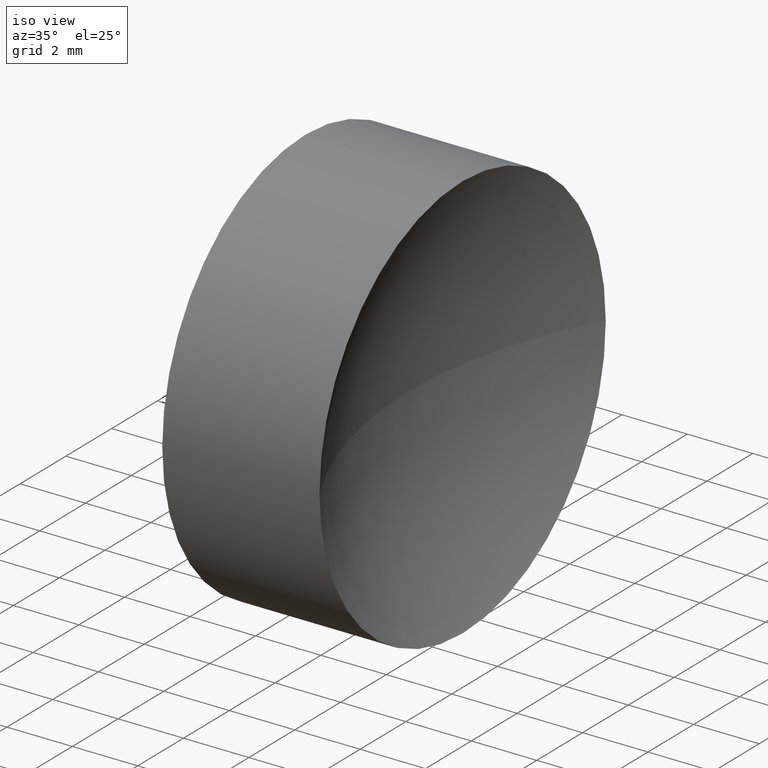
[diagram: clean part render]
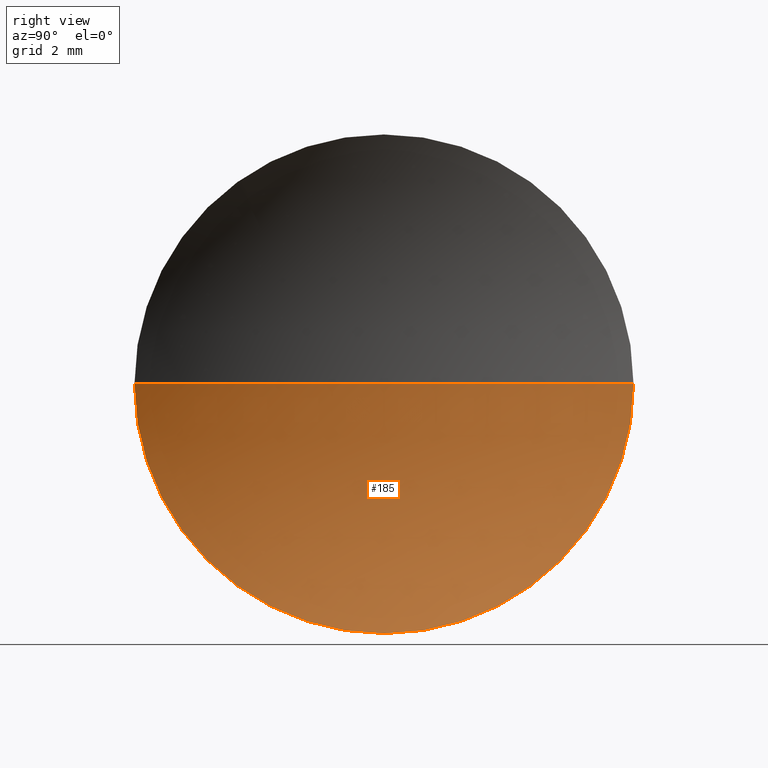
[diagram: tour spotlight — one face highlighted and labeled with its STEP entity id]
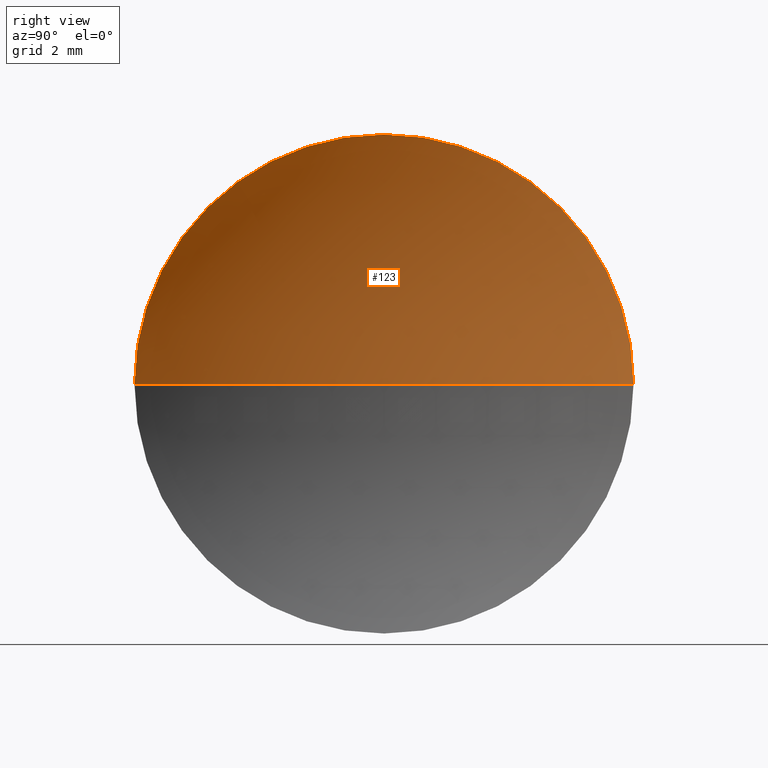
[diagram: tour spotlight — one face highlighted and labeled with its STEP entity id]
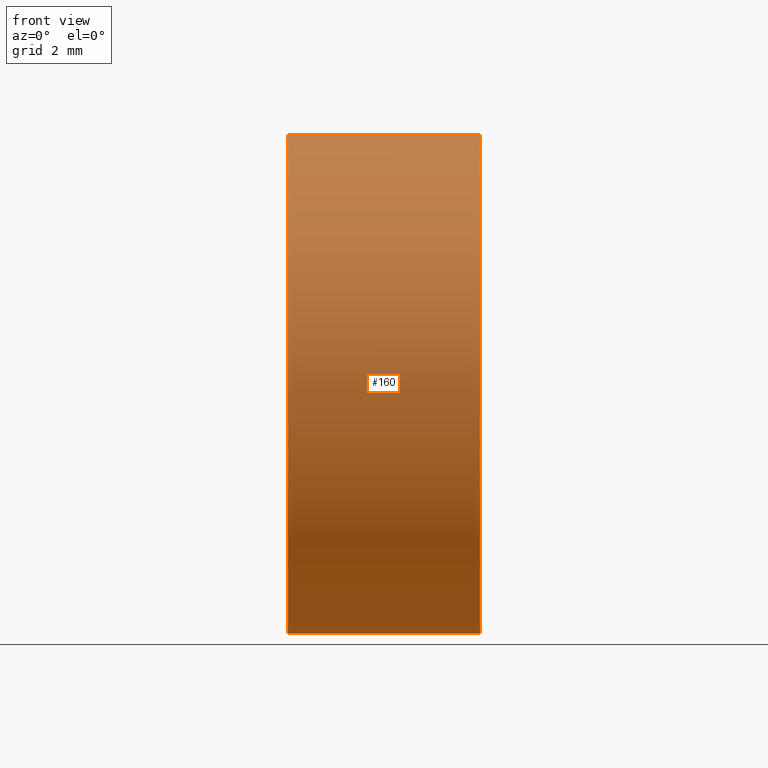
[diagram: tour spotlight — one face highlighted and labeled with its STEP entity id]
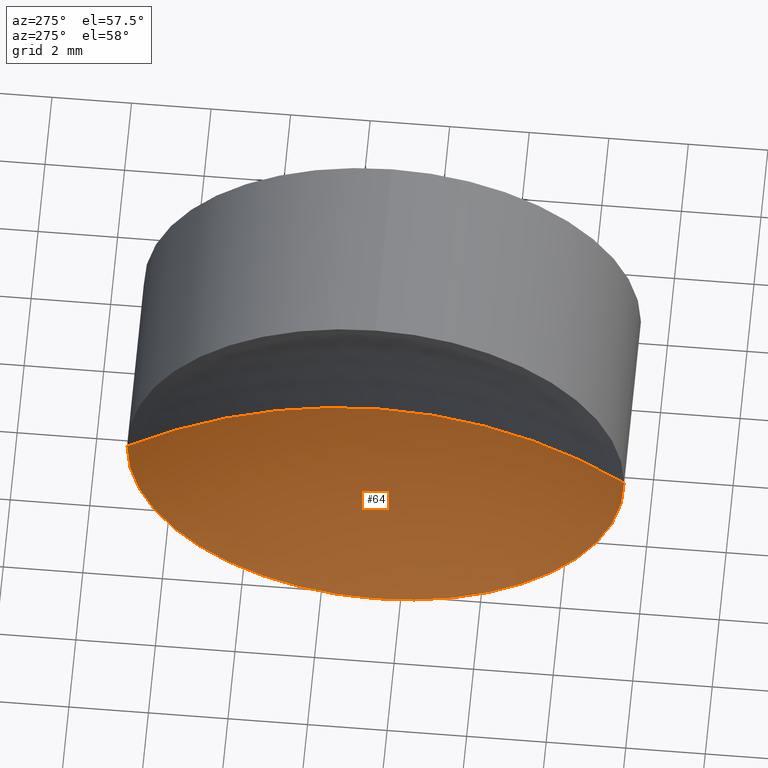
[diagram: tour spotlight — one face highlighted and labeled with its STEP entity id]
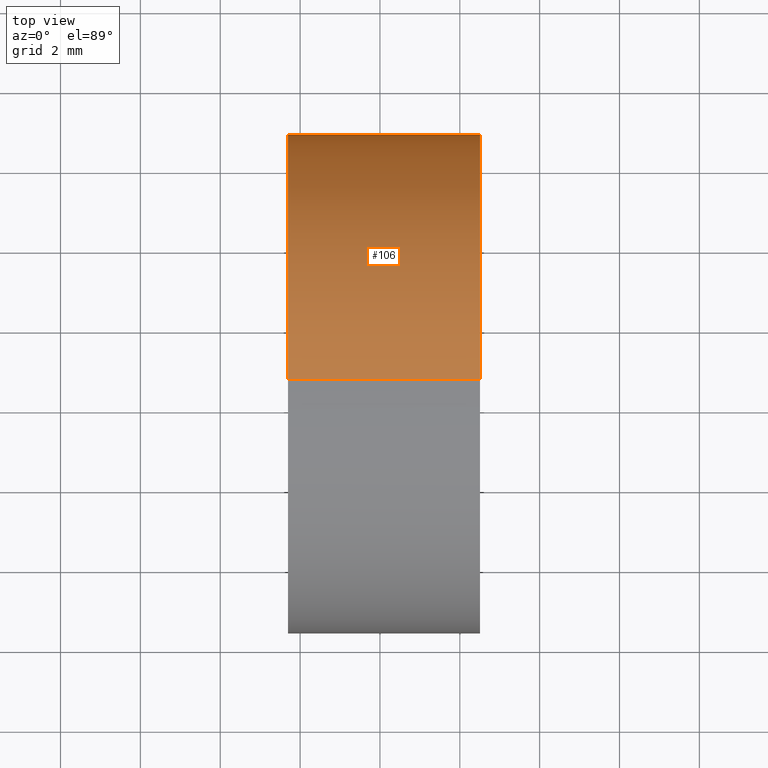
[diagram: tour spotlight — one face highlighted and labeled with its STEP entity id]
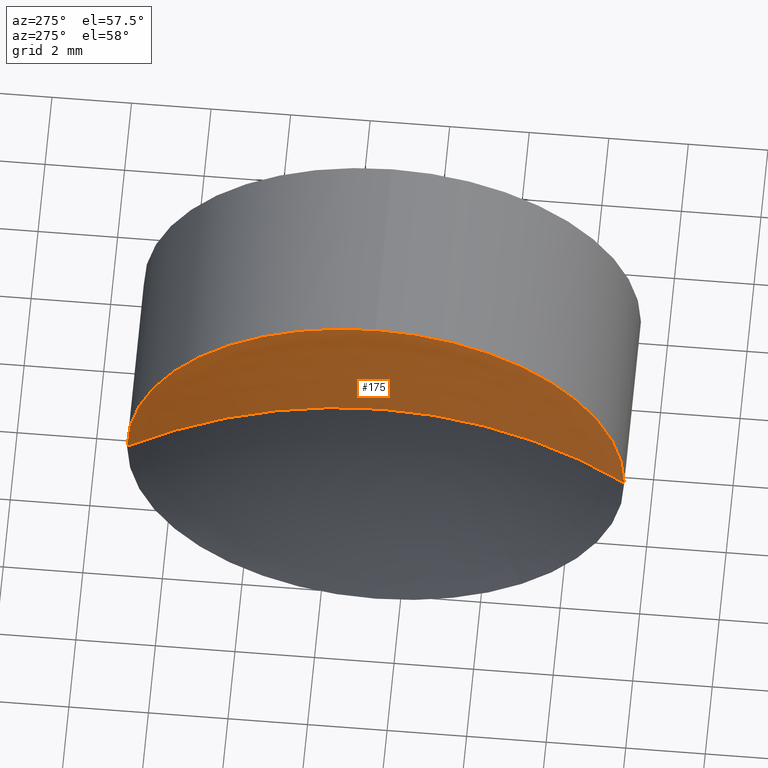
[diagram: tour spotlight — one face highlighted and labeled with its STEP entity id]
A machine part: a face-by-face anatomy tour. The part has 6 B-rep faces; the first image is the clean iso view, then the 6 largest visible faces are spotlighted one at a time (largest first), each with its STEP entity span.

Face 1 — right view, entity #185. In plain terms, the highlighted spherical surface has radius 12.64 mm.
Definition (entity closure, byte-faithful):
#12 = VERTEX_POINT ( 'NONE', #142 ) ;
#16 = CARTESIAN_POINT ( 'NONE',  ( 62.50492152106526300, 32.61130143649369700, 0.0000000000000000000 ) ) ;
#18 = VERTEX_POINT ( 'NONE', #89 ) ;
#19 = EDGE_CURVE ( 'NONE', #71, #190, #214, .T. ) ;
#22 = EDGE_CURVE ( 'NONE', #12, #18, #50, .T. ) ;
#23 = CARTESIAN_POINT ( 'NONE',  ( 73.49159981798467800, 32.61130143649369700, 0.0000000000000000000 ) ) ;
#27 = CARTESIAN_POINT ( 'NONE',  ( 73.49159981798467800, 32.61130143649369700, 0.0000000000000000000 ) ) ;
#28 = ORIENTED_EDGE ( 'NONE', *, *, #191, .F. ) ;
#29 = CARTESIAN_POINT ( 'NONE',  ( 73.49159981798467800, 32.61130143649369700, 0.0000000000000000000 ) ) ;
#34 = AXIS2_PLACEMENT_3D ( 'NONE', #27, #224, #201 ) ;
#43 = AXIS2_PLACEMENT_3D ( 'NONE', #16, #84, #121 ) ;
#50 = CIRCLE ( 'NONE', #155, 6.249999999999998200 ) ;
#51 = SPHERICAL_SURFACE ( 'NONE', #87, 12.64000000000000600 ) ;
#54 = CARTESIAN_POINT ( 'NONE',  ( 62.50492152106526300, 26.36130143649369700, 0.0000000000000000000 ) ) ;
#57 = FACE_OUTER_BOUND ( 'NONE', #100, .T. ) ;
#65 = CIRCLE ( 'NONE', #34, 12.64000000000000600 ) ;
#69 = EDGE_CURVE ( 'NONE', #12, #190, #65, .T. ) ;
#71 = VERTEX_POINT ( 'NONE', #54 ) ;
#75 = DIRECTION ( 'NONE',  ( -1.000000000000000000, -0.0000000000000000000, -0.0000000000000000000 ) ) ;
#79 = DIRECTION ( 'NONE',  ( 0.0000000000000000000, -1.000000000000000000, 0.0000000000000000000 ) ) ;
#84 = DIRECTION ( 'NONE',  ( -1.000000000000000000, -0.0000000000000000000, -0.0000000000000000000 ) ) ;
#87 = AXIS2_PLACEMENT_3D ( 'NONE', #29, #229, #79 ) ;
#89 = CARTESIAN_POINT ( 'NONE',  ( 62.50492152106526300, 32.61130143649369700, -6.249999999999998200 ) ) ;
#93 = AXIS2_PLACEMENT_3D ( 'NONE', #23, #193, #110 ) ;
#94 = ORIENTED_EDGE ( 'NONE', *, *, #19, .F. ) ;
#100 = EDGE_LOOP ( 'NONE', ( #140, #102, #94, #28 ) ) ;
#102 = ORIENTED_EDGE ( 'NONE', *, *, #69, .T. ) ;
#110 = DIRECTION ( 'NONE',  ( -1.000000000000000000, 0.0000000000000000000, 0.0000000000000000000 ) ) ;
#111 = DIRECTION ( 'NONE',  ( 0.0000000000000000000, 0.0000000000000000000, 1.000000000000000000 ) ) ;
#115 = CARTESIAN_POINT ( 'NONE',  ( 62.50492152106526300, 32.61130143649369700, 0.0000000000000000000 ) ) ;
#118 = CARTESIAN_POINT ( 'NONE',  ( 60.85159981798467800, 32.61130143649369700, 0.0000000000000000000 ) ) ;
#121 = DIRECTION ( 'NONE',  ( 0.0000000000000000000, 0.0000000000000000000, 1.000000000000000000 ) ) ;
#140 = ORIENTED_EDGE ( 'NONE', *, *, #22, .F. ) ;
#142 = CARTESIAN_POINT ( 'NONE',  ( 62.50492152106526300, 38.86130143649369000, 7.654042494670953700E-016 ) ) ;
#151 = CIRCLE ( 'NONE', #43, 6.249999999999998200 ) ;
#155 = AXIS2_PLACEMENT_3D ( 'NONE', #115, #75, #111 ) ;
#185 = ADVANCED_FACE ( 'NONE', ( #57 ), #51, .F. ) ;
#190 = VERTEX_POINT ( 'NONE', #118 ) ;
#191 = EDGE_CURVE ( 'NONE', #18, #71, #151, .T. ) ;
#193 = DIRECTION ( 'NONE',  ( 0.0000000000000000000, 0.0000000000000000000, -1.000000000000000000 ) ) ;
#201 = DIRECTION ( 'NONE',  ( 0.0000000000000000000, -1.000000000000000000, -1.224646799147353200E-016 ) ) ;
#214 = CIRCLE ( 'NONE', #93, 12.64000000000000600 ) ;
#224 = DIRECTION ( 'NONE',  ( 0.0000000000000000000, -1.224646799147353200E-016, 1.000000000000000000 ) ) ;
#229 = DIRECTION ( 'NONE',  ( 0.0000000000000000000, 0.0000000000000000000, 1.000000000000000000 ) ) ;

Face 2 — right view, entity #123. In plain terms, the highlighted spherical surface has radius 12.64 mm.
Definition (entity closure, byte-faithful):
#6 = AXIS2_PLACEMENT_3D ( 'NONE', #164, #74, #166 ) ;
#12 = VERTEX_POINT ( 'NONE', #142 ) ;
#19 = EDGE_CURVE ( 'NONE', #71, #190, #214, .T. ) ;
#23 = CARTESIAN_POINT ( 'NONE',  ( 73.49159981798467800, 32.61130143649369700, 0.0000000000000000000 ) ) ;
#27 = CARTESIAN_POINT ( 'NONE',  ( 73.49159981798467800, 32.61130143649369700, 0.0000000000000000000 ) ) ;
#33 = EDGE_LOOP ( 'NONE', ( #148, #68, #156, #61 ) ) ;
#34 = AXIS2_PLACEMENT_3D ( 'NONE', #27, #224, #201 ) ;
#40 = DIRECTION ( 'NONE',  ( 0.0000000000000000000, 0.0000000000000000000, 1.000000000000000000 ) ) ;
#41 = CARTESIAN_POINT ( 'NONE',  ( 62.50492152106526300, 32.61130143649369700, 0.0000000000000000000 ) ) ;
#45 = DIRECTION ( 'NONE',  ( 0.0000000000000000000, 0.0000000000000000000, 1.000000000000000000 ) ) ;
#52 = EDGE_CURVE ( 'NONE', #98, #12, #180, .T. ) ;
#53 = FACE_OUTER_BOUND ( 'NONE', #33, .T. ) ;
#54 = CARTESIAN_POINT ( 'NONE',  ( 62.50492152106526300, 26.36130143649369700, 0.0000000000000000000 ) ) ;
#58 = CARTESIAN_POINT ( 'NONE',  ( 62.50492152106526300, 32.61130143649369700, 0.0000000000000000000 ) ) ;
#61 = ORIENTED_EDGE ( 'NONE', *, *, #19, .T. ) ;
#65 = CIRCLE ( 'NONE', #34, 12.64000000000000600 ) ;
#68 = ORIENTED_EDGE ( 'NONE', *, *, #52, .F. ) ;
#69 = EDGE_CURVE ( 'NONE', #12, #190, #65, .T. ) ;
#71 = VERTEX_POINT ( 'NONE', #54 ) ;
#74 = DIRECTION ( 'NONE',  ( 0.0000000000000000000, 0.0000000000000000000, 1.000000000000000000 ) ) ;
#86 = EDGE_CURVE ( 'NONE', #71, #98, #194, .T. ) ;
#93 = AXIS2_PLACEMENT_3D ( 'NONE', #23, #193, #110 ) ;
#95 = DIRECTION ( 'NONE',  ( -1.000000000000000000, -0.0000000000000000000, -0.0000000000000000000 ) ) ;
#98 = VERTEX_POINT ( 'NONE', #153 ) ;
#110 = DIRECTION ( 'NONE',  ( -1.000000000000000000, 0.0000000000000000000, 0.0000000000000000000 ) ) ;
#118 = CARTESIAN_POINT ( 'NONE',  ( 60.85159981798467800, 32.61130143649369700, 0.0000000000000000000 ) ) ;
#123 = ADVANCED_FACE ( 'NONE', ( #53 ), #137, .F. ) ;
#129 = DIRECTION ( 'NONE',  ( -1.000000000000000000, -0.0000000000000000000, -0.0000000000000000000 ) ) ;
#137 = SPHERICAL_SURFACE ( 'NONE', #6, 12.64000000000000600 ) ;
#142 = CARTESIAN_POINT ( 'NONE',  ( 62.50492152106526300, 38.86130143649369000, 7.654042494670953700E-016 ) ) ;
#148 = ORIENTED_EDGE ( 'NONE', *, *, #69, .F. ) ;
#153 = CARTESIAN_POINT ( 'NONE',  ( 62.50492152106526300, 32.61130143649369700, 6.249999999999998200 ) ) ;
#156 = ORIENTED_EDGE ( 'NONE', *, *, #86, .F. ) ;
#158 = AXIS2_PLACEMENT_3D ( 'NONE', #58, #129, #45 ) ;
#164 = CARTESIAN_POINT ( 'NONE',  ( 73.49159981798467800, 32.61130143649369700, 0.0000000000000000000 ) ) ;
#166 = DIRECTION ( 'NONE',  ( 0.0000000000000000000, -1.000000000000000000, 0.0000000000000000000 ) ) ;
#180 = CIRCLE ( 'NONE', #195, 6.249999999999998200 ) ;
#190 = VERTEX_POINT ( 'NONE', #118 ) ;
#193 = DIRECTION ( 'NONE',  ( 0.0000000000000000000, 0.0000000000000000000, -1.000000000000000000 ) ) ;
#194 = CIRCLE ( 'NONE', #158, 6.249999999999998200 ) ;
#195 = AXIS2_PLACEMENT_3D ( 'NONE', #41, #95, #40 ) ;
#201 = DIRECTION ( 'NONE',  ( 0.0000000000000000000, -1.000000000000000000, -1.224646799147353200E-016 ) ) ;
#214 = CIRCLE ( 'NONE', #93, 12.64000000000000600 ) ;
#224 = DIRECTION ( 'NONE',  ( 0.0000000000000000000, -1.224646799147353200E-016, 1.000000000000000000 ) ) ;

Face 3 — front view, entity #160. In plain terms, the highlighted cylindrical surface (partial cylindrical patch) has radius 6.25 mm, axis along (-1, -0, -0).
Definition (entity closure, byte-faithful):
#4 = ORIENTED_EDGE ( 'NONE', *, *, #191, .T. ) ;
#5 = CARTESIAN_POINT ( 'NONE',  ( 57.69827810624625600, 26.36130143649369400, -7.654042494670953700E-016 ) ) ;
#7 = DIRECTION ( 'NONE',  ( 0.0000000000000000000, 0.0000000000000000000, 1.000000000000000000 ) ) ;
#10 = CARTESIAN_POINT ( 'NONE',  ( 57.69827810624625600, 32.61130143649369700, 0.0000000000000000000 ) ) ;
#11 = CARTESIAN_POINT ( 'NONE',  ( 57.69827810624625600, 32.61130143649369700, -6.249999999999998200 ) ) ;
#16 = CARTESIAN_POINT ( 'NONE',  ( 62.50492152106526300, 32.61130143649369700, 0.0000000000000000000 ) ) ;
#17 = ORIENTED_EDGE ( 'NONE', *, *, #209, .F. ) ;
#18 = VERTEX_POINT ( 'NONE', #89 ) ;
#24 = CARTESIAN_POINT ( 'NONE',  ( 53.06232639267102500, 32.61130143649369700, -6.249999999999998200 ) ) ;
#31 = CARTESIAN_POINT ( 'NONE',  ( 57.69827810624625600, 32.61130143649369700, 6.249999999999998200 ) ) ;
#37 = CIRCLE ( 'NONE', #72, 6.249999999999998200 ) ;
#43 = AXIS2_PLACEMENT_3D ( 'NONE', #16, #84, #121 ) ;
#45 = DIRECTION ( 'NONE',  ( 0.0000000000000000000, 0.0000000000000000000, 1.000000000000000000 ) ) ;
#46 = VERTEX_POINT ( 'NONE', #5 ) ;
#49 = VERTEX_POINT ( 'NONE', #11 ) ;
#54 = CARTESIAN_POINT ( 'NONE',  ( 62.50492152106526300, 26.36130143649369700, 0.0000000000000000000 ) ) ;
#56 = EDGE_CURVE ( 'NONE', #46, #230, #90, .T. ) ;
#58 = CARTESIAN_POINT ( 'NONE',  ( 62.50492152106526300, 32.61130143649369700, 0.0000000000000000000 ) ) ;
#70 = CYLINDRICAL_SURFACE ( 'NONE', #109, 6.249999999999998200 ) ;
#71 = VERTEX_POINT ( 'NONE', #54 ) ;
#72 = AXIS2_PLACEMENT_3D ( 'NONE', #82, #81, #133 ) ;
#77 = DIRECTION ( 'NONE',  ( 0.0000000000000000000, 0.0000000000000000000, 1.000000000000000000 ) ) ;
#78 = ORIENTED_EDGE ( 'NONE', *, *, #86, .T. ) ;
#80 = EDGE_CURVE ( 'NONE', #18, #49, #217, .T. ) ;
#81 = DIRECTION ( 'NONE',  ( -1.000000000000000000, -0.0000000000000000000, -0.0000000000000000000 ) ) ;
#82 = CARTESIAN_POINT ( 'NONE',  ( 57.69827810624625600, 32.61130143649369700, 0.0000000000000000000 ) ) ;
#84 = DIRECTION ( 'NONE',  ( -1.000000000000000000, -0.0000000000000000000, -0.0000000000000000000 ) ) ;
#86 = EDGE_CURVE ( 'NONE', #71, #98, #194, .T. ) ;
#89 = CARTESIAN_POINT ( 'NONE',  ( 62.50492152106526300, 32.61130143649369700, -6.249999999999998200 ) ) ;
#90 = CIRCLE ( 'NONE', #213, 6.249999999999998200 ) ;
#97 = CARTESIAN_POINT ( 'NONE',  ( 53.06232639267102500, 32.61130143649369700, 0.0000000000000000000 ) ) ;
#98 = VERTEX_POINT ( 'NONE', #153 ) ;
#101 = EDGE_LOOP ( 'NONE', ( #127, #4, #78, #144, #116, #17 ) ) ;
#105 = VECTOR ( 'NONE', #157, 1000.000000000000000 ) ;
#109 = AXIS2_PLACEMENT_3D ( 'NONE', #97, #114, #7 ) ;
#112 = DIRECTION ( 'NONE',  ( -1.000000000000000000, -0.0000000000000000000, -0.0000000000000000000 ) ) ;
#114 = DIRECTION ( 'NONE',  ( -1.000000000000000000, -0.0000000000000000000, -0.0000000000000000000 ) ) ;
#116 = ORIENTED_EDGE ( 'NONE', *, *, #56, .F. ) ;
#120 = FACE_OUTER_BOUND ( 'NONE', #101, .T. ) ;
#121 = DIRECTION ( 'NONE',  ( 0.0000000000000000000, 0.0000000000000000000, 1.000000000000000000 ) ) ;
#127 = ORIENTED_EDGE ( 'NONE', *, *, #80, .F. ) ;
#129 = DIRECTION ( 'NONE',  ( -1.000000000000000000, -0.0000000000000000000, -0.0000000000000000000 ) ) ;
#133 = DIRECTION ( 'NONE',  ( 0.0000000000000000000, 0.0000000000000000000, 1.000000000000000000 ) ) ;
#144 = ORIENTED_EDGE ( 'NONE', *, *, #203, .T. ) ;
#150 = DIRECTION ( 'NONE',  ( -1.000000000000000000, -0.0000000000000000000, -0.0000000000000000000 ) ) ;
#151 = CIRCLE ( 'NONE', #43, 6.249999999999998200 ) ;
#153 = CARTESIAN_POINT ( 'NONE',  ( 62.50492152106526300, 32.61130143649369700, 6.249999999999998200 ) ) ;
#157 = DIRECTION ( 'NONE',  ( -1.000000000000000000, -0.0000000000000000000, -0.0000000000000000000 ) ) ;
#158 = AXIS2_PLACEMENT_3D ( 'NONE', #58, #129, #45 ) ;
#160 = ADVANCED_FACE ( 'NONE', ( #120 ), #70, .T. ) ;
#162 = LINE ( 'NONE', #169, #105 ) ;
#169 = CARTESIAN_POINT ( 'NONE',  ( 53.06232639267102500, 32.61130143649369700, 6.249999999999998200 ) ) ;
#191 = EDGE_CURVE ( 'NONE', #18, #71, #151, .T. ) ;
#194 = CIRCLE ( 'NONE', #158, 6.249999999999998200 ) ;
#203 = EDGE_CURVE ( 'NONE', #98, #230, #162, .T. ) ;
#206 = VECTOR ( 'NONE', #150, 1000.000000000000000 ) ;
#209 = EDGE_CURVE ( 'NONE', #49, #46, #37, .T. ) ;
#213 = AXIS2_PLACEMENT_3D ( 'NONE', #10, #112, #77 ) ;
#217 = LINE ( 'NONE', #24, #206 ) ;
#230 = VERTEX_POINT ( 'NONE', #31 ) ;

Face 4 — auxiliary view, entity #64. In plain terms, the highlighted spherical surface has radius 12.64 mm.
Definition (entity closure, byte-faithful):
#1 = CIRCLE ( 'NONE', #219, 12.64000000000000600 ) ;
#5 = CARTESIAN_POINT ( 'NONE',  ( 57.69827810624625600, 26.36130143649369400, -7.654042494670953700E-016 ) ) ;
#11 = CARTESIAN_POINT ( 'NONE',  ( 57.69827810624625600, 32.61130143649369700, -6.249999999999998200 ) ) ;
#25 = DIRECTION ( 'NONE',  ( 0.0000000000000000000, 1.000000000000000000, 0.0000000000000000000 ) ) ;
#36 = EDGE_LOOP ( 'NONE', ( #183, #132, #63, #177 ) ) ;
#37 = CIRCLE ( 'NONE', #72, 6.249999999999998200 ) ;
#42 = AXIS2_PLACEMENT_3D ( 'NONE', #226, #47, #119 ) ;
#46 = VERTEX_POINT ( 'NONE', #5 ) ;
#47 = DIRECTION ( 'NONE',  ( -1.000000000000000000, -0.0000000000000000000, -0.0000000000000000000 ) ) ;
#49 = VERTEX_POINT ( 'NONE', #11 ) ;
#59 = DIRECTION ( 'NONE',  ( 1.000000000000000000, 0.0000000000000000000, 0.0000000000000000000 ) ) ;
#63 = ORIENTED_EDGE ( 'NONE', *, *, #221, .T. ) ;
#64 = ADVANCED_FACE ( 'NONE', ( #147 ), #122, .F. ) ;
#67 = EDGE_CURVE ( 'NONE', #91, #196, #1, .T. ) ;
#72 = AXIS2_PLACEMENT_3D ( 'NONE', #82, #81, #133 ) ;
#73 = CARTESIAN_POINT ( 'NONE',  ( 59.35159980932684900, 32.61130143649369000, 0.0000000000000000000 ) ) ;
#76 = AXIS2_PLACEMENT_3D ( 'NONE', #104, #210, #208 ) ;
#81 = DIRECTION ( 'NONE',  ( -1.000000000000000000, -0.0000000000000000000, -0.0000000000000000000 ) ) ;
#82 = CARTESIAN_POINT ( 'NONE',  ( 57.69827810624625600, 32.61130143649369700, 0.0000000000000000000 ) ) ;
#91 = VERTEX_POINT ( 'NONE', #73 ) ;
#99 = CARTESIAN_POINT ( 'NONE',  ( 46.71159980932684200, 32.61130143649369000, 0.0000000000000000000 ) ) ;
#104 = CARTESIAN_POINT ( 'NONE',  ( 46.71159980932684200, 32.61130143649369000, 0.0000000000000000000 ) ) ;
#113 = CIRCLE ( 'NONE', #76, 12.64000000000000600 ) ;
#119 = DIRECTION ( 'NONE',  ( 0.0000000000000000000, 0.0000000000000000000, 1.000000000000000000 ) ) ;
#122 = SPHERICAL_SURFACE ( 'NONE', #124, 12.64000000000000600 ) ;
#124 = AXIS2_PLACEMENT_3D ( 'NONE', #99, #128, #25 ) ;
#128 = DIRECTION ( 'NONE',  ( 0.0000000000000000000, 0.0000000000000000000, -1.000000000000000000 ) ) ;
#132 = ORIENTED_EDGE ( 'NONE', *, *, #67, .T. ) ;
#133 = DIRECTION ( 'NONE',  ( 0.0000000000000000000, 0.0000000000000000000, 1.000000000000000000 ) ) ;
#134 = CARTESIAN_POINT ( 'NONE',  ( 57.69827810624625600, 38.86130143649369700, 0.0000000000000000000 ) ) ;
#147 = FACE_OUTER_BOUND ( 'NONE', #36, .T. ) ;
#163 = DIRECTION ( 'NONE',  ( 0.0000000000000000000, 0.0000000000000000000, 1.000000000000000000 ) ) ;
#177 = ORIENTED_EDGE ( 'NONE', *, *, #209, .T. ) ;
#178 = CARTESIAN_POINT ( 'NONE',  ( 46.71159980932684200, 32.61130143649369000, 0.0000000000000000000 ) ) ;
#183 = ORIENTED_EDGE ( 'NONE', *, *, #187, .F. ) ;
#187 = EDGE_CURVE ( 'NONE', #91, #46, #113, .T. ) ;
#196 = VERTEX_POINT ( 'NONE', #134 ) ;
#208 = DIRECTION ( 'NONE',  ( 0.0000000000000000000, 1.000000000000000000, 1.224646799147353200E-016 ) ) ;
#209 = EDGE_CURVE ( 'NONE', #49, #46, #37, .T. ) ;
#210 = DIRECTION ( 'NONE',  ( 0.0000000000000000000, 1.224646799147353200E-016, -1.000000000000000000 ) ) ;
#219 = AXIS2_PLACEMENT_3D ( 'NONE', #178, #163, #59 ) ;
#221 = EDGE_CURVE ( 'NONE', #196, #49, #223, .T. ) ;
#223 = CIRCLE ( 'NONE', #42, 6.249999999999998200 ) ;
#226 = CARTESIAN_POINT ( 'NONE',  ( 57.69827810624625600, 32.61130143649369700, 0.0000000000000000000 ) ) ;

Face 5 — top view, entity #106. In plain terms, the highlighted cylindrical surface (partial cylindrical patch) has radius 6.25 mm, axis along (-1, -0, -0).
Definition (entity closure, byte-faithful):
#9 = CYLINDRICAL_SURFACE ( 'NONE', #88, 6.249999999999998200 ) ;
#11 = CARTESIAN_POINT ( 'NONE',  ( 57.69827810624625600, 32.61130143649369700, -6.249999999999998200 ) ) ;
#12 = VERTEX_POINT ( 'NONE', #142 ) ;
#18 = VERTEX_POINT ( 'NONE', #89 ) ;
#21 = EDGE_CURVE ( 'NONE', #230, #196, #44, .T. ) ;
#22 = EDGE_CURVE ( 'NONE', #12, #18, #50, .T. ) ;
#24 = CARTESIAN_POINT ( 'NONE',  ( 53.06232639267102500, 32.61130143649369700, -6.249999999999998200 ) ) ;
#31 = CARTESIAN_POINT ( 'NONE',  ( 57.69827810624625600, 32.61130143649369700, 6.249999999999998200 ) ) ;
#40 = DIRECTION ( 'NONE',  ( 0.0000000000000000000, 0.0000000000000000000, 1.000000000000000000 ) ) ;
#41 = CARTESIAN_POINT ( 'NONE',  ( 62.50492152106526300, 32.61130143649369700, 0.0000000000000000000 ) ) ;
#42 = AXIS2_PLACEMENT_3D ( 'NONE', #226, #47, #119 ) ;
#44 = CIRCLE ( 'NONE', #139, 6.249999999999998200 ) ;
#47 = DIRECTION ( 'NONE',  ( -1.000000000000000000, -0.0000000000000000000, -0.0000000000000000000 ) ) ;
#49 = VERTEX_POINT ( 'NONE', #11 ) ;
#50 = CIRCLE ( 'NONE', #155, 6.249999999999998200 ) ;
#52 = EDGE_CURVE ( 'NONE', #98, #12, #180, .T. ) ;
#55 = DIRECTION ( 'NONE',  ( 0.0000000000000000000, 0.0000000000000000000, 1.000000000000000000 ) ) ;
#75 = DIRECTION ( 'NONE',  ( -1.000000000000000000, -0.0000000000000000000, -0.0000000000000000000 ) ) ;
#80 = EDGE_CURVE ( 'NONE', #18, #49, #217, .T. ) ;
#88 = AXIS2_PLACEMENT_3D ( 'NONE', #149, #222, #55 ) ;
#89 = CARTESIAN_POINT ( 'NONE',  ( 62.50492152106526300, 32.61130143649369700, -6.249999999999998200 ) ) ;
#95 = DIRECTION ( 'NONE',  ( -1.000000000000000000, -0.0000000000000000000, -0.0000000000000000000 ) ) ;
#98 = VERTEX_POINT ( 'NONE', #153 ) ;
#105 = VECTOR ( 'NONE', #157, 1000.000000000000000 ) ;
#106 = ADVANCED_FACE ( 'NONE', ( #192 ), #9, .T. ) ;
#111 = DIRECTION ( 'NONE',  ( 0.0000000000000000000, 0.0000000000000000000, 1.000000000000000000 ) ) ;
#115 = CARTESIAN_POINT ( 'NONE',  ( 62.50492152106526300, 32.61130143649369700, 0.0000000000000000000 ) ) ;
#119 = DIRECTION ( 'NONE',  ( 0.0000000000000000000, 0.0000000000000000000, 1.000000000000000000 ) ) ;
#134 = CARTESIAN_POINT ( 'NONE',  ( 57.69827810624625600, 38.86130143649369700, 0.0000000000000000000 ) ) ;
#138 = ORIENTED_EDGE ( 'NONE', *, *, #203, .F. ) ;
#139 = AXIS2_PLACEMENT_3D ( 'NONE', #216, #146, #197 ) ;
#142 = CARTESIAN_POINT ( 'NONE',  ( 62.50492152106526300, 38.86130143649369000, 7.654042494670953700E-016 ) ) ;
#146 = DIRECTION ( 'NONE',  ( -1.000000000000000000, -0.0000000000000000000, -0.0000000000000000000 ) ) ;
#149 = CARTESIAN_POINT ( 'NONE',  ( 53.06232639267102500, 32.61130143649369700, 0.0000000000000000000 ) ) ;
#150 = DIRECTION ( 'NONE',  ( -1.000000000000000000, -0.0000000000000000000, -0.0000000000000000000 ) ) ;
#153 = CARTESIAN_POINT ( 'NONE',  ( 62.50492152106526300, 32.61130143649369700, 6.249999999999998200 ) ) ;
#155 = AXIS2_PLACEMENT_3D ( 'NONE', #115, #75, #111 ) ;
#157 = DIRECTION ( 'NONE',  ( -1.000000000000000000, -0.0000000000000000000, -0.0000000000000000000 ) ) ;
#159 = ORIENTED_EDGE ( 'NONE', *, *, #221, .F. ) ;
#161 = ORIENTED_EDGE ( 'NONE', *, *, #52, .T. ) ;
#162 = LINE ( 'NONE', #169, #105 ) ;
#168 = ORIENTED_EDGE ( 'NONE', *, *, #80, .T. ) ;
#169 = CARTESIAN_POINT ( 'NONE',  ( 53.06232639267102500, 32.61130143649369700, 6.249999999999998200 ) ) ;
#174 = ORIENTED_EDGE ( 'NONE', *, *, #21, .F. ) ;
#180 = CIRCLE ( 'NONE', #195, 6.249999999999998200 ) ;
#192 = FACE_OUTER_BOUND ( 'NONE', #225, .T. ) ;
#195 = AXIS2_PLACEMENT_3D ( 'NONE', #41, #95, #40 ) ;
#196 = VERTEX_POINT ( 'NONE', #134 ) ;
#197 = DIRECTION ( 'NONE',  ( 0.0000000000000000000, 0.0000000000000000000, 1.000000000000000000 ) ) ;
#203 = EDGE_CURVE ( 'NONE', #98, #230, #162, .T. ) ;
#206 = VECTOR ( 'NONE', #150, 1000.000000000000000 ) ;
#216 = CARTESIAN_POINT ( 'NONE',  ( 57.69827810624625600, 32.61130143649369700, 0.0000000000000000000 ) ) ;
#217 = LINE ( 'NONE', #24, #206 ) ;
#218 = ORIENTED_EDGE ( 'NONE', *, *, #22, .T. ) ;
#221 = EDGE_CURVE ( 'NONE', #196, #49, #223, .T. ) ;
#222 = DIRECTION ( 'NONE',  ( -1.000000000000000000, -0.0000000000000000000, -0.0000000000000000000 ) ) ;
#223 = CIRCLE ( 'NONE', #42, 6.249999999999998200 ) ;
#225 = EDGE_LOOP ( 'NONE', ( #218, #168, #159, #174, #138, #161 ) ) ;
#226 = CARTESIAN_POINT ( 'NONE',  ( 57.69827810624625600, 32.61130143649369700, 0.0000000000000000000 ) ) ;
#230 = VERTEX_POINT ( 'NONE', #31 ) ;

Face 6 — auxiliary view, entity #175. In plain terms, the highlighted spherical surface has radius 12.64 mm.
Definition (entity closure, byte-faithful):
#1 = CIRCLE ( 'NONE', #219, 12.64000000000000600 ) ;
#3 = EDGE_LOOP ( 'NONE', ( #48, #145, #188, #200 ) ) ;
#5 = CARTESIAN_POINT ( 'NONE',  ( 57.69827810624625600, 26.36130143649369400, -7.654042494670953700E-016 ) ) ;
#10 = CARTESIAN_POINT ( 'NONE',  ( 57.69827810624625600, 32.61130143649369700, 0.0000000000000000000 ) ) ;
#20 = FACE_OUTER_BOUND ( 'NONE', #3, .T. ) ;
#21 = EDGE_CURVE ( 'NONE', #230, #196, #44, .T. ) ;
#26 = DIRECTION ( 'NONE',  ( 0.0000000000000000000, 0.0000000000000000000, -1.000000000000000000 ) ) ;
#31 = CARTESIAN_POINT ( 'NONE',  ( 57.69827810624625600, 32.61130143649369700, 6.249999999999998200 ) ) ;
#44 = CIRCLE ( 'NONE', #139, 6.249999999999998200 ) ;
#46 = VERTEX_POINT ( 'NONE', #5 ) ;
#48 = ORIENTED_EDGE ( 'NONE', *, *, #67, .F. ) ;
#56 = EDGE_CURVE ( 'NONE', #46, #230, #90, .T. ) ;
#59 = DIRECTION ( 'NONE',  ( 1.000000000000000000, 0.0000000000000000000, 0.0000000000000000000 ) ) ;
#67 = EDGE_CURVE ( 'NONE', #91, #196, #1, .T. ) ;
#73 = CARTESIAN_POINT ( 'NONE',  ( 59.35159980932684900, 32.61130143649369000, 0.0000000000000000000 ) ) ;
#76 = AXIS2_PLACEMENT_3D ( 'NONE', #104, #210, #208 ) ;
#77 = DIRECTION ( 'NONE',  ( 0.0000000000000000000, 0.0000000000000000000, 1.000000000000000000 ) ) ;
#90 = CIRCLE ( 'NONE', #213, 6.249999999999998200 ) ;
#91 = VERTEX_POINT ( 'NONE', #73 ) ;
#104 = CARTESIAN_POINT ( 'NONE',  ( 46.71159980932684200, 32.61130143649369000, 0.0000000000000000000 ) ) ;
#112 = DIRECTION ( 'NONE',  ( -1.000000000000000000, -0.0000000000000000000, -0.0000000000000000000 ) ) ;
#113 = CIRCLE ( 'NONE', #76, 12.64000000000000600 ) ;
#130 = CARTESIAN_POINT ( 'NONE',  ( 46.71159980932684200, 32.61130143649369000, 0.0000000000000000000 ) ) ;
#134 = CARTESIAN_POINT ( 'NONE',  ( 57.69827810624625600, 38.86130143649369700, 0.0000000000000000000 ) ) ;
#139 = AXIS2_PLACEMENT_3D ( 'NONE', #216, #146, #197 ) ;
#145 = ORIENTED_EDGE ( 'NONE', *, *, #187, .T. ) ;
#146 = DIRECTION ( 'NONE',  ( -1.000000000000000000, -0.0000000000000000000, -0.0000000000000000000 ) ) ;
#152 = DIRECTION ( 'NONE',  ( 0.0000000000000000000, 1.000000000000000000, 0.0000000000000000000 ) ) ;
#163 = DIRECTION ( 'NONE',  ( 0.0000000000000000000, 0.0000000000000000000, 1.000000000000000000 ) ) ;
#175 = ADVANCED_FACE ( 'NONE', ( #20 ), #211, .F. ) ;
#176 = AXIS2_PLACEMENT_3D ( 'NONE', #130, #26, #152 ) ;
#178 = CARTESIAN_POINT ( 'NONE',  ( 46.71159980932684200, 32.61130143649369000, 0.0000000000000000000 ) ) ;
#187 = EDGE_CURVE ( 'NONE', #91, #46, #113, .T. ) ;
#188 = ORIENTED_EDGE ( 'NONE', *, *, #56, .T. ) ;
#196 = VERTEX_POINT ( 'NONE', #134 ) ;
#197 = DIRECTION ( 'NONE',  ( 0.0000000000000000000, 0.0000000000000000000, 1.000000000000000000 ) ) ;
#200 = ORIENTED_EDGE ( 'NONE', *, *, #21, .T. ) ;
#208 = DIRECTION ( 'NONE',  ( 0.0000000000000000000, 1.000000000000000000, 1.224646799147353200E-016 ) ) ;
#210 = DIRECTION ( 'NONE',  ( 0.0000000000000000000, 1.224646799147353200E-016, -1.000000000000000000 ) ) ;
#211 = SPHERICAL_SURFACE ( 'NONE', #176, 12.64000000000000600 ) ;
#213 = AXIS2_PLACEMENT_3D ( 'NONE', #10, #112, #77 ) ;
#216 = CARTESIAN_POINT ( 'NONE',  ( 57.69827810624625600, 32.61130143649369700, 0.0000000000000000000 ) ) ;
#219 = AXIS2_PLACEMENT_3D ( 'NONE', #178, #163, #59 ) ;
#230 = VERTEX_POINT ( 'NONE', #31 ) ;